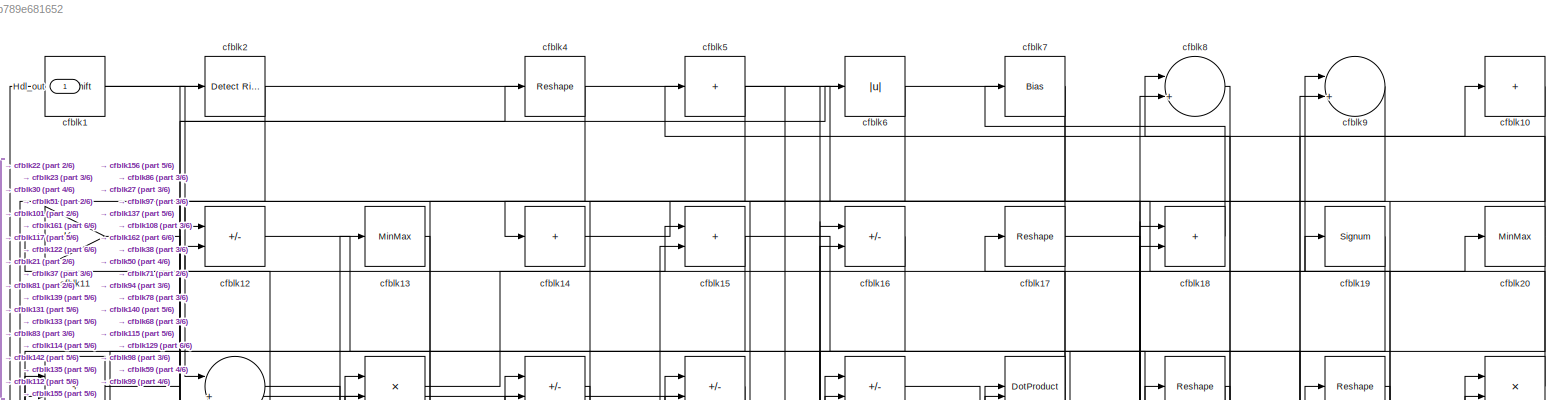
[diagram: root canvas - part 1/6, full width, top band]
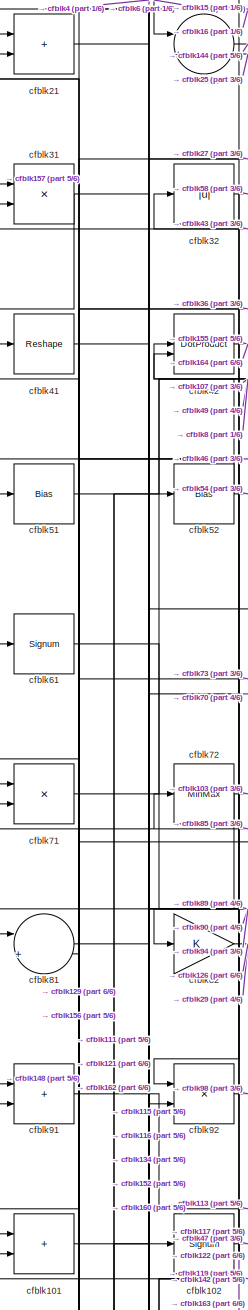
[diagram: root canvas - part 2/6, middle left region]
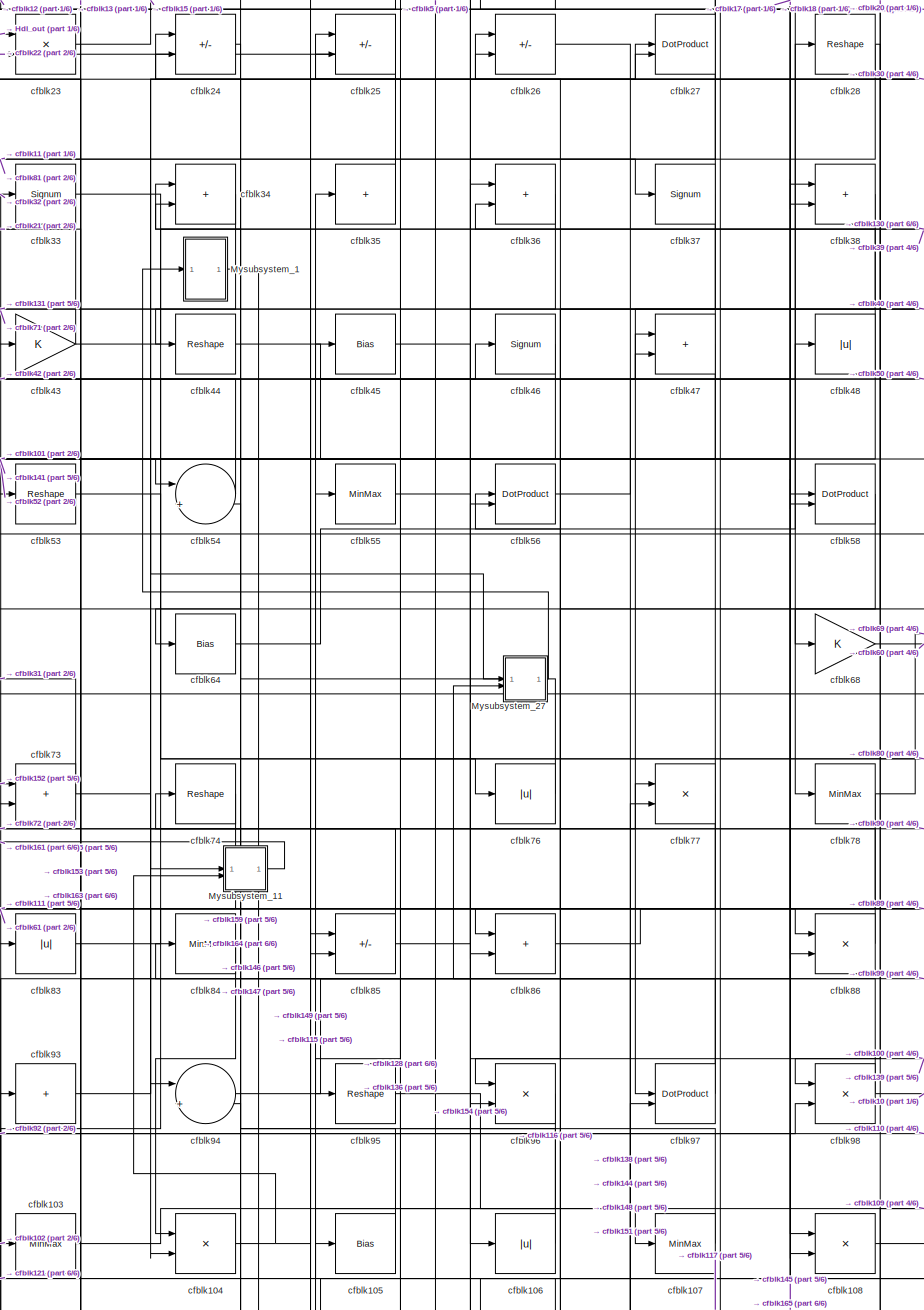
[diagram: root canvas - part 3/6, central region]
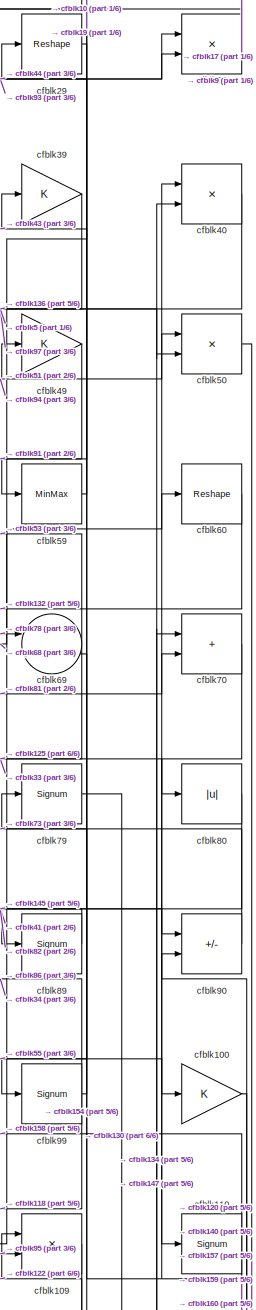
[diagram: root canvas - part 4/6, middle right region]
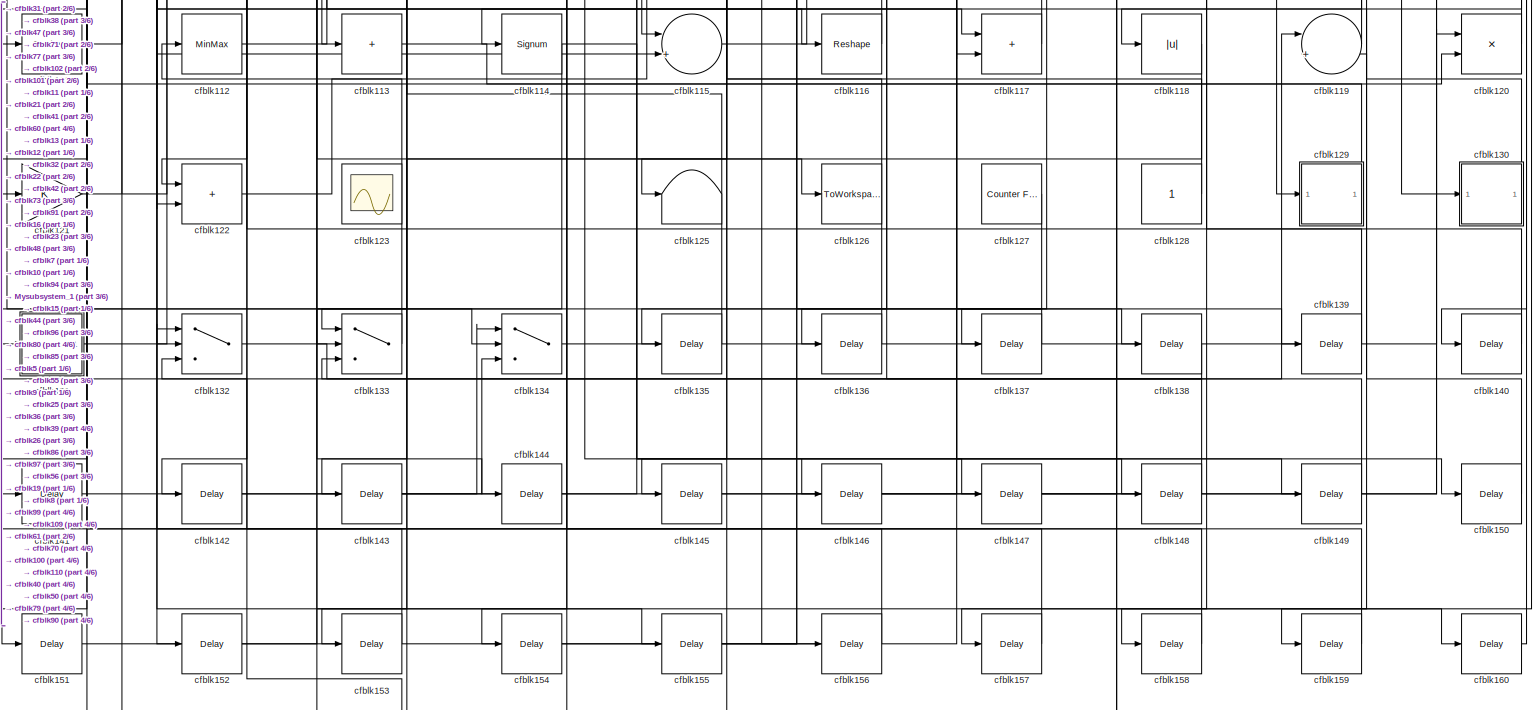
[diagram: root canvas - part 5/6, full width, bottom band]
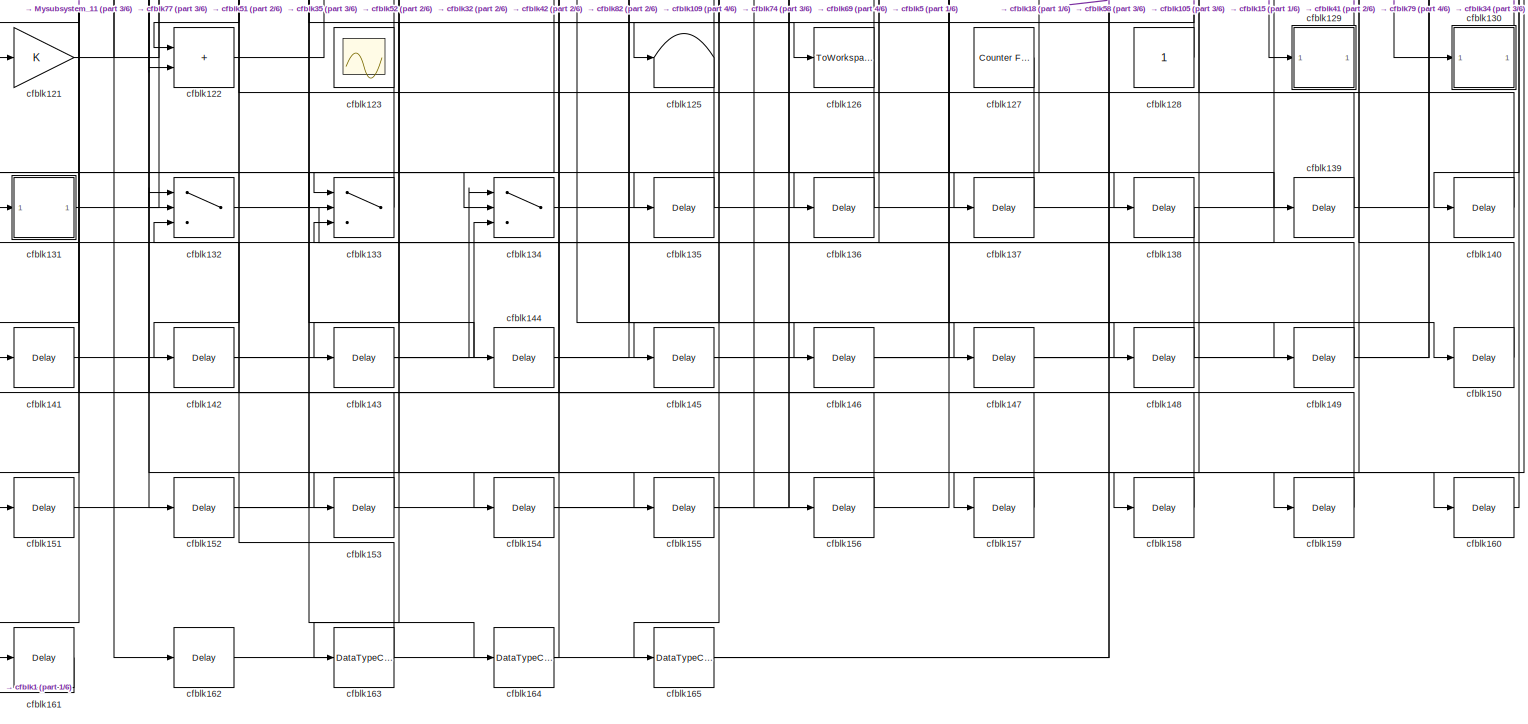
[diagram: root canvas - part 6/6, full width, bottom band]
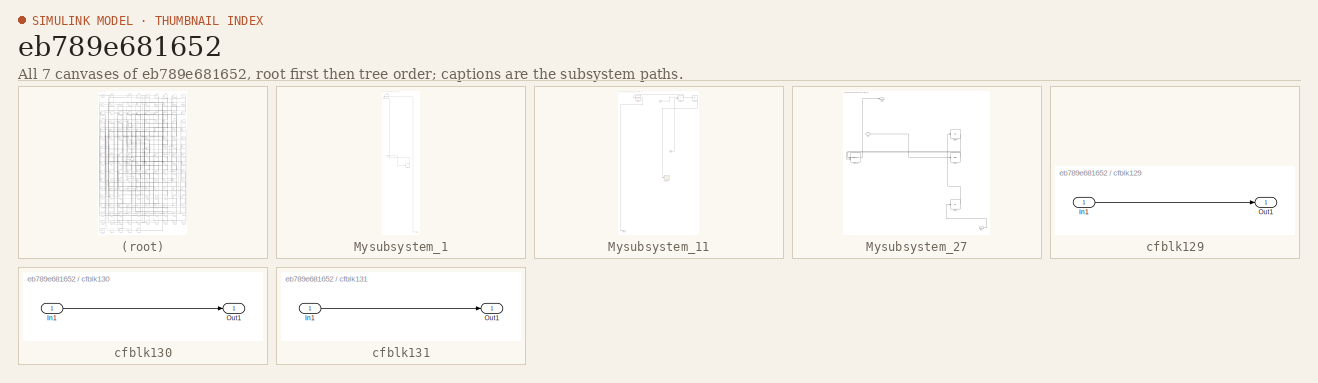
[diagram: thumbnail index - all 7 canvases of the model, root first then tree order]
MODEL slx_eb789e681652
KIND model
CONFIG AbsTol = auto
CONFIG EnableMultiTasking = off
CONFIG FixedStep = auto
CONFIG MaxStep = auto
CONFIG MinStep = auto
CONFIG RelTol = 1e-3
CONFIG SampleTimeConstraint = Unconstrained
CONFIG SolverName = VariableStepAuto
CONFIG StartTime = 0.0
CONFIG StopTime = 10.0
BLOCK [Outport] Hdl_out
  OutDataTypeStr = uint8
BLOCK [SubSystem] Mysubsystem_1
  RTWFcnName = Mysubsystem_1
  RTWFcnNameOpts = User specified
  RTWFileNameOpts = Use function name
  RTWSystemCode = Reusable function
  TreatAsAtomicUnit = on
BLOCK [Inport] Mysubsystem_1/In1
BLOCK [Outport] Mysubsystem_1/Y
BLOCK [Reference] Mysubsystem_1/cfblk3  REF=simulink/Logic and Bit
Operations/Detect
Decrease
  LibrarySourceBlock = hdlsllib/Logic and Bit\nOperations/Detect\nDecrease
  SourceBlock = simulink/Logic and Bit\nOperations/Detect\nDecrease
  SourceType = Detect Decrease
BLOCK [Sum] Mysubsystem_1/cfblk75
  IconShape = rectangular
  Inputs = +
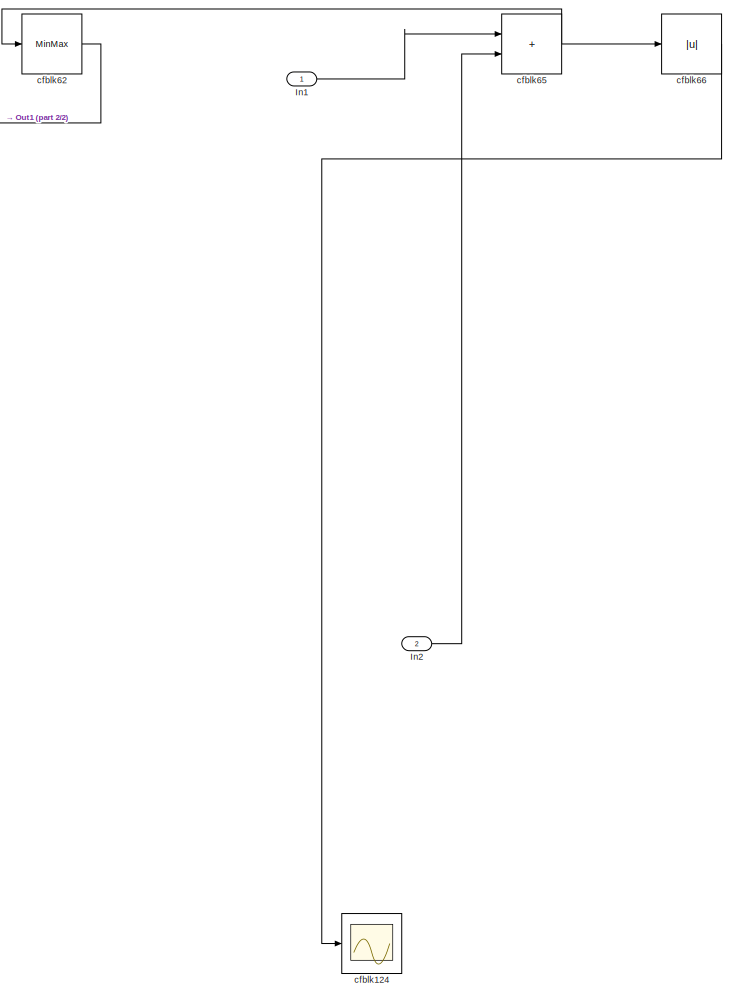
[diagram: Mysubsystem_11 - part 1/2, full width, top band]
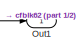
[diagram: Mysubsystem_11 - part 2/2, bottom left region]
BLOCK [SubSystem] Mysubsystem_11
  RTWFcnName = Mysubsystem_11
  RTWFcnNameOpts = User specified
  RTWFileNameOpts = Use function name
  RTWSystemCode = Reusable function
  TreatAsAtomicUnit = on
BLOCK [Inport] Mysubsystem_11/In1
BLOCK [Inport] Mysubsystem_11/In2
  Port = 2
BLOCK [Outport] Mysubsystem_11/Out1
BLOCK [Scope] Mysubsystem_11/cfblk124
  Floating = off
  NumInputPorts = 1
  ScopeSpecificationString = Simulink.scopes.TimeScopeBlockCfg('CurrentConfiguration', extmgr.ConfigurationSet(extmgr.Configuration('Core','General UI',true),extmgr.Configuration('Core','Source UI',true),extmgr.Configuration('Sources','WiredSimulink',true,'DataLoggingVariableName','ScopeData2','DataLoggingSaveFormat','Array','DataLoggingLimitDataPoints',true,'DataLoggingDecimation','1'),extmgr.Configuration('Visuals','Time Do...<+868ch>
BLOCK [MinMax] Mysubsystem_11/cfblk62
BLOCK [Sum] Mysubsystem_11/cfblk65
  IconShape = rectangular
BLOCK [Abs] Mysubsystem_11/cfblk66
  SaturateOnIntegerOverflow = off
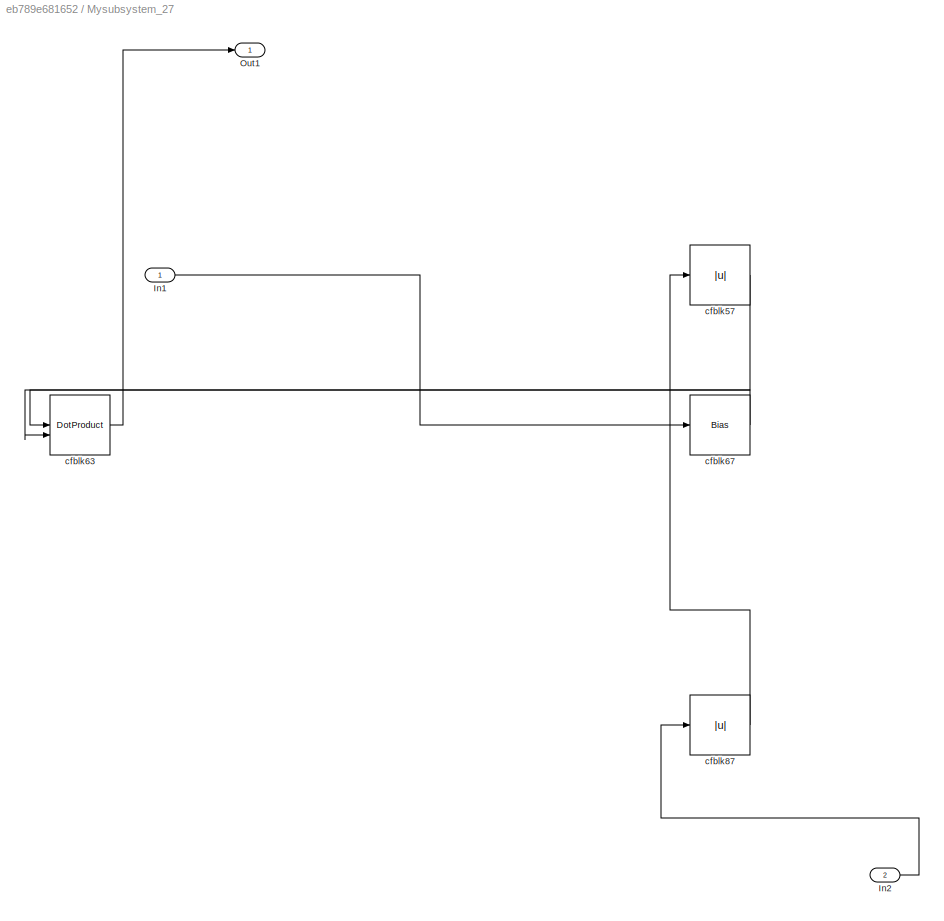
BLOCK [SubSystem] Mysubsystem_27
  RTWFcnName = Mysubsystem_27
  RTWFcnNameOpts = User specified
  RTWFileNameOpts = Use function name
  RTWSystemCode = Reusable function
  TreatAsAtomicUnit = on
BLOCK [Inport] Mysubsystem_27/In1
BLOCK [Inport] Mysubsystem_27/In2
  Port = 2
BLOCK [Outport] Mysubsystem_27/Out1
BLOCK [Abs] Mysubsystem_27/cfblk57
  SaturateOnIntegerOverflow = off
BLOCK [DotProduct] Mysubsystem_27/cfblk63
  OutDataTypeStr = Inherit: Inherit via internal rule
BLOCK [Bias] Mysubsystem_27/cfblk67
  Bias = 0.0
  SaturateOnIntegerOverflow = off
BLOCK [Abs] Mysubsystem_27/cfblk87
  SaturateOnIntegerOverflow = off
BLOCK [Reference] cfblk1  REF=hdlsllib/Logic and Bit
Operations/Bit Shift
  SourceBlock = hdlsllib/Logic and Bit\nOperations/Bit Shift
  SourceType = Bit Shift
BLOCK [Sum] cfblk10
  IconShape = rectangular
  Inputs = +
  OutDataTypeStr = uint8
BLOCK [Gain] cfblk100
  OutDataTypeStr = uint8
BLOCK [Sum] cfblk101
  IconShape = rectangular
  OutDataTypeStr = uint8
BLOCK [Signum] cfblk102
BLOCK [MinMax] cfblk103
  OutDataTypeStr = uint8
BLOCK [Product] cfblk104
  Inputs = */
  OutDataTypeStr = uint8
  RndMeth = Zero
  SaturateOnIntegerOverflow = on
BLOCK [Bias] cfblk105
  Bias = 0.0
  SaturateOnIntegerOverflow = off
BLOCK [Abs] cfblk106
  OutDataTypeStr = uint8
  SaturateOnIntegerOverflow = off
BLOCK [MinMax] cfblk107
  OutDataTypeStr = uint8
BLOCK [Product] cfblk108
  Inputs = */
  OutDataTypeStr = uint8
  RndMeth = Zero
  SaturateOnIntegerOverflow = on
BLOCK [Product] cfblk109
  Inputs = */
  OutDataTypeStr = uint8
  RndMeth = Zero
  SaturateOnIntegerOverflow = on
BLOCK [Gain] cfblk11
  OutDataTypeStr = uint8
BLOCK [Signum] cfblk110
BLOCK [Reshape] cfblk111
BLOCK [MinMax] cfblk112
  OutDataTypeStr = uint8
BLOCK [Sum] cfblk113
  IconShape = rectangular
  Inputs = +
  OutDataTypeStr = uint8
BLOCK [Signum] cfblk114
BLOCK [Sum] cfblk115
  Inputs = |++
  OutDataTypeStr = uint8
BLOCK [Reshape] cfblk116
BLOCK [Sum] cfblk117
  IconShape = rectangular
  OutDataTypeStr = uint8
BLOCK [Abs] cfblk118
  OutDataTypeStr = uint8
  SaturateOnIntegerOverflow = off
BLOCK [Sum] cfblk119
  Inputs = |++
  OutDataTypeStr = uint8
BLOCK [Sum] cfblk12
  IconShape = rectangular
  Inputs = +-
  OutDataTypeStr = uint8
BLOCK [Product] cfblk120
  Inputs = */
  OutDataTypeStr = uint8
  RndMeth = Zero
  SaturateOnIntegerOverflow = on
BLOCK [Gain] cfblk121
  OutDataTypeStr = uint8
BLOCK [Sum] cfblk122
  IconShape = rectangular
  OutDataTypeStr = uint8
BLOCK [Scope] cfblk123
  Floating = on
  NumInputPorts = 1
  ScopeSpecificationString = Simulink.scopes.TimeScopeBlockCfg('CurrentConfiguration', extmgr.ConfigurationSet(extmgr.Configuration('Core','General UI',true,'FigureColor',[0.156862745098039 0.156862745098039 0.156862745098039]),extmgr.Configuration('Core','Source UI',true),extmgr.Configuration('Sources','WiredSimulink',true,'DataLoggingVariableName','ScopeData1','DataLoggingSaveFormat','StructureWithTime','DataLoggingLimitDat...<+2713ch>
BLOCK [Terminator] cfblk125
BLOCK [ToWorkspace] cfblk126
  MaxDataPoints = inf
  SampleTime = -1
  SaveFormat = Timeseries
  VariableName = simout
BLOCK [Reference] cfblk127  REF=hdlsllib/Sources/Counter
Free-Running
  SourceBlock = hdlsllib/Sources/Counter\nFree-Running
  SourceType = Counter Free-Running
BLOCK [Constant] cfblk128
  OutDataTypeStr = uint8
  SampleTime = -1
BLOCK [SubSystem] cfblk129
  LibrarySourceBlock = hdlsllib/Ports &\nSubsystems/Subsystem
BLOCK [Inport] cfblk129/In1
BLOCK [Outport] cfblk129/Out1
BLOCK [MinMax] cfblk13
  OutDataTypeStr = uint8
BLOCK [SubSystem] cfblk130
  LibrarySourceBlock = hdlsllib/Ports &\nSubsystems/Subsystem
BLOCK [Inport] cfblk130/In1
BLOCK [Outport] cfblk130/Out1
BLOCK [SubSystem] cfblk131
  LibrarySourceBlock = hdlsllib/Ports &\nSubsystems/Subsystem
BLOCK [Inport] cfblk131/In1
BLOCK [Outport] cfblk131/Out1
BLOCK [Switch] cfblk132
  InputSameDT = off
  OutDataTypeStr = uint8
  SaturateOnIntegerOverflow = off
BLOCK [Switch] cfblk133
  InputSameDT = off
  OutDataTypeStr = uint8
  SaturateOnIntegerOverflow = off
BLOCK [Switch] cfblk134
  InputSameDT = off
  OutDataTypeStr = uint8
  SaturateOnIntegerOverflow = off
BLOCK [Delay] cfblk135
  InputPortMap = u0
  SampleTime = 1
BLOCK [Delay] cfblk136
  InputPortMap = u0
  SampleTime = 1
BLOCK [Delay] cfblk137
  InputPortMap = u0
  SampleTime = 1
BLOCK [Delay] cfblk138
  InputPortMap = u0
  SampleTime = 1
BLOCK [Delay] cfblk139
  InputPortMap = u0
  SampleTime = 1
BLOCK [Sum] cfblk14
  IconShape = rectangular
  Inputs = +
  OutDataTypeStr = uint8
BLOCK [Delay] cfblk140
  InputPortMap = u0
  SampleTime = 1
BLOCK [Delay] cfblk141
  InputPortMap = u0
  SampleTime = 1
BLOCK [Delay] cfblk142
  InputPortMap = u0
  SampleTime = 1
BLOCK [Delay] cfblk143
  InputPortMap = u0
  SampleTime = 1
BLOCK [Delay] cfblk144
  InputPortMap = u0
  SampleTime = 1
BLOCK [Delay] cfblk145
  InputPortMap = u0
  SampleTime = 1
BLOCK [Delay] cfblk146
  InputPortMap = u0
  SampleTime = 1
BLOCK [Delay] cfblk147
  InputPortMap = u0
  SampleTime = 1
BLOCK [Delay] cfblk148
  InputPortMap = u0
  SampleTime = 1
BLOCK [Delay] cfblk149
  InputPortMap = u0
  SampleTime = 1
BLOCK [Sum] cfblk15
  IconShape = rectangular
  OutDataTypeStr = uint8
BLOCK [Delay] cfblk150
  InputPortMap = u0
  SampleTime = 1
BLOCK [Delay] cfblk151
  InputPortMap = u0
  SampleTime = 1
BLOCK [Delay] cfblk152
  InputPortMap = u0
  SampleTime = 1
BLOCK [Delay] cfblk153
  InputPortMap = u0
  SampleTime = 1
BLOCK [Delay] cfblk154
  InputPortMap = u0
  SampleTime = 1
BLOCK [Delay] cfblk155
  InputPortMap = u0
  SampleTime = 1
BLOCK [Delay] cfblk156
  InputPortMap = u0
  SampleTime = 1
BLOCK [Delay] cfblk157
  InputPortMap = u0
  SampleTime = 1
BLOCK [Delay] cfblk158
  InputPortMap = u0
  SampleTime = 1
BLOCK [Delay] cfblk159
  InputPortMap = u0
  SampleTime = 1
BLOCK [Sum] cfblk16
  IconShape = rectangular
  Inputs = +-
  OutDataTypeStr = uint8
BLOCK [Delay] cfblk160
  InputPortMap = u0
  SampleTime = 1
BLOCK [Delay] cfblk161
  InputPortMap = u0
  SampleTime = 1
BLOCK [Delay] cfblk162
  InputPortMap = u0
  SampleTime = 1
BLOCK [DataTypeConversion] cfblk163
  OutDataTypeStr = uint8
  RndMeth = Floor
  SaturateOnIntegerOverflow = off
BLOCK [DataTypeConversion] cfblk164
  OutDataTypeStr = uint8
  RndMeth = Floor
  SaturateOnIntegerOverflow = off
BLOCK [DataTypeConversion] cfblk165
  OutDataTypeStr = uint8
  RndMeth = Floor
  SaturateOnIntegerOverflow = off
BLOCK [Reshape] cfblk17
BLOCK [Sum] cfblk18
  IconShape = rectangular
  OutDataTypeStr = uint8
BLOCK [Signum] cfblk19
BLOCK [Reference] cfblk2  REF=hdlsllib/Logic and Bit
Operations/Detect Rise
Positive
  SourceBlock = hdlsllib/Logic and Bit\nOperations/Detect Rise\nPositive
  SourceType = Detect Rise Positive
BLOCK [MinMax] cfblk20
  OutDataTypeStr = uint8
BLOCK [Sum] cfblk21
  IconShape = rectangular
  OutDataTypeStr = uint8
BLOCK [Sum] cfblk22
  Inputs = |++
  OutDataTypeStr = uint8
BLOCK [Product] cfblk23
  Inputs = */
  OutDataTypeStr = uint8
  RndMeth = Zero
  SaturateOnIntegerOverflow = on
BLOCK [Sum] cfblk24
  IconShape = rectangular
  Inputs = +-
  OutDataTypeStr = uint8
BLOCK [Sum] cfblk25
  IconShape = rectangular
  Inputs = +-
  OutDataTypeStr = uint8
BLOCK [Sum] cfblk26
  IconShape = rectangular
  Inputs = +-
  OutDataTypeStr = uint8
BLOCK [DotProduct] cfblk27
  OutDataTypeStr = uint8
BLOCK [Reshape] cfblk28
BLOCK [Reshape] cfblk29
BLOCK [Product] cfblk30
  Inputs = */
  OutDataTypeStr = uint8
  RndMeth = Zero
  SaturateOnIntegerOverflow = on
BLOCK [Product] cfblk31
  Inputs = */
  OutDataTypeStr = uint8
  RndMeth = Zero
  SaturateOnIntegerOverflow = on
BLOCK [Abs] cfblk32
  OutDataTypeStr = uint8
  SaturateOnIntegerOverflow = off
BLOCK [Signum] cfblk33
BLOCK [Sum] cfblk34
  IconShape = rectangular
  OutDataTypeStr = uint8
BLOCK [Sum] cfblk35
  IconShape = rectangular
  Inputs = +
  OutDataTypeStr = uint8
BLOCK [Sum] cfblk36
  IconShape = rectangular
  OutDataTypeStr = uint8
BLOCK [Signum] cfblk37
BLOCK [Sum] cfblk38
  IconShape = rectangular
  OutDataTypeStr = uint8
BLOCK [Gain] cfblk39
  OutDataTypeStr = uint8
BLOCK [Reshape] cfblk4
BLOCK [Product] cfblk40
  Inputs = */
  OutDataTypeStr = uint8
  RndMeth = Zero
  SaturateOnIntegerOverflow = on
BLOCK [Reshape] cfblk41
BLOCK [DotProduct] cfblk42
  OutDataTypeStr = uint8
BLOCK [Gain] cfblk43
  OutDataTypeStr = uint8
BLOCK [Reshape] cfblk44
BLOCK [Bias] cfblk45
  Bias = 0.0
  SaturateOnIntegerOverflow = off
BLOCK [Signum] cfblk46
BLOCK [Sum] cfblk47
  IconShape = rectangular
  OutDataTypeStr = uint8
BLOCK [Abs] cfblk48
  OutDataTypeStr = uint8
  SaturateOnIntegerOverflow = off
BLOCK [Gain] cfblk49
  OutDataTypeStr = uint8
BLOCK [Sum] cfblk5
  IconShape = rectangular
  Inputs = +
  OutDataTypeStr = uint8
BLOCK [Product] cfblk50
  Inputs = */
  OutDataTypeStr = uint8
  RndMeth = Zero
  SaturateOnIntegerOverflow = on
BLOCK [Bias] cfblk51
  Bias = 0.0
  SaturateOnIntegerOverflow = off
BLOCK [Bias] cfblk52
  Bias = 0.0
  SaturateOnIntegerOverflow = off
BLOCK [Reshape] cfblk53
BLOCK [Sum] cfblk54
  Inputs = |++
  OutDataTypeStr = uint8
BLOCK [MinMax] cfblk55
  OutDataTypeStr = uint8
BLOCK [DotProduct] cfblk56
  OutDataTypeStr = uint8
BLOCK [DotProduct] cfblk58
  OutDataTypeStr = uint8
BLOCK [MinMax] cfblk59
  OutDataTypeStr = uint8
BLOCK [Abs] cfblk6
  OutDataTypeStr = uint8
  SaturateOnIntegerOverflow = off
BLOCK [Reshape] cfblk60
BLOCK [Signum] cfblk61
BLOCK [Bias] cfblk64
  Bias = 0.0
  SaturateOnIntegerOverflow = off
BLOCK [Gain] cfblk68
  OutDataTypeStr = uint8
BLOCK [Sum] cfblk69
  Inputs = |++
  OutDataTypeStr = uint8
BLOCK [Bias] cfblk7
  Bias = 0.0
  SaturateOnIntegerOverflow = off
BLOCK [Sum] cfblk70
  IconShape = rectangular
  OutDataTypeStr = uint8
BLOCK [Product] cfblk71
  Inputs = */
  OutDataTypeStr = uint8
  RndMeth = Zero
  SaturateOnIntegerOverflow = on
BLOCK [MinMax] cfblk72
  OutDataTypeStr = uint8
BLOCK [Sum] cfblk73
  IconShape = rectangular
  OutDataTypeStr = uint8
BLOCK [Reshape] cfblk74
BLOCK [Abs] cfblk76
  OutDataTypeStr = uint8
  SaturateOnIntegerOverflow = off
BLOCK [Product] cfblk77
  Inputs = */
  OutDataTypeStr = uint8
  RndMeth = Zero
  SaturateOnIntegerOverflow = on
BLOCK [MinMax] cfblk78
  OutDataTypeStr = uint8
BLOCK [Signum] cfblk79
BLOCK [Sum] cfblk8
  Inputs = |++
  OutDataTypeStr = uint8
BLOCK [Abs] cfblk80
  OutDataTypeStr = uint8
  SaturateOnIntegerOverflow = off
BLOCK [Sum] cfblk81
  Inputs = |++
  OutDataTypeStr = uint8
BLOCK [Gain] cfblk82
  OutDataTypeStr = uint8
BLOCK [Abs] cfblk83
  OutDataTypeStr = uint8
  SaturateOnIntegerOverflow = off
BLOCK [MinMax] cfblk84
  OutDataTypeStr = uint8
BLOCK [Sum] cfblk85
  IconShape = rectangular
  Inputs = +-
  OutDataTypeStr = uint8
BLOCK [Sum] cfblk86
  IconShape = rectangular
  OutDataTypeStr = uint8
BLOCK [Product] cfblk88
  Inputs = */
  OutDataTypeStr = uint8
  RndMeth = Zero
  SaturateOnIntegerOverflow = on
BLOCK [Signum] cfblk89
BLOCK [Sum] cfblk9
  Inputs = |++
  OutDataTypeStr = uint8
BLOCK [Sum] cfblk90
  IconShape = rectangular
  Inputs = +-
  OutDataTypeStr = uint8
BLOCK [Sum] cfblk91
  IconShape = rectangular
  OutDataTypeStr = uint8
BLOCK [Product] cfblk92
  Inputs = */
  OutDataTypeStr = uint8
  RndMeth = Zero
  SaturateOnIntegerOverflow = on
BLOCK [Sum] cfblk93
  IconShape = rectangular
  Inputs = +
  OutDataTypeStr = uint8
BLOCK [Sum] cfblk94
  Inputs = |++
  OutDataTypeStr = uint8
BLOCK [Reshape] cfblk95
BLOCK [Product] cfblk96
  Inputs = */
  OutDataTypeStr = uint8
  RndMeth = Zero
  SaturateOnIntegerOverflow = on
BLOCK [DotProduct] cfblk97
  OutDataTypeStr = uint8
BLOCK [Product] cfblk98
  Inputs = */
  OutDataTypeStr = uint8
  RndMeth = Zero
  SaturateOnIntegerOverflow = on
BLOCK [Signum] cfblk99
LINE Mysubsystem_1/In1:1 -> Mysubsystem_1/cfblk75:1
LINE Mysubsystem_1/cfblk3:1 -> Mysubsystem_1/Y:1
LINE Mysubsystem_1/cfblk75:1 -> Mysubsystem_1/cfblk3:1
LINE Mysubsystem_11/In1:1 -> Mysubsystem_11/cfblk65:1
LINE Mysubsystem_11/In2:1 -> Mysubsystem_11/cfblk65:2
LINE Mysubsystem_11/cfblk62:1 -> Mysubsystem_11/Out1:1
NET Mysubsystem_11/cfblk65:1 -> Mysubsystem_11/cfblk62:1, Mysubsystem_11/cfblk66:1
LINE Mysubsystem_11/cfblk66:1 -> Mysubsystem_11/cfblk124:1
LINE Mysubsystem_11:1 -> cfblk161:1
NET Mysubsystem_1:1 -> cfblk146:1, cfblk147:1
LINE Mysubsystem_27/In1:1 -> Mysubsystem_27/cfblk67:1
LINE Mysubsystem_27/In2:1 -> Mysubsystem_27/cfblk87:1
LINE Mysubsystem_27/cfblk57:1 -> Mysubsystem_27/cfblk63:2
LINE Mysubsystem_27/cfblk63:1 -> Mysubsystem_27/Out1:1
LINE Mysubsystem_27/cfblk67:1 -> Mysubsystem_27/cfblk63:1
LINE Mysubsystem_27/cfblk87:1 -> Mysubsystem_27/cfblk57:1
LINE Mysubsystem_27:1 -> Mysubsystem_1:1
LINE cfblk100:1 -> cfblk140:1
LINE cfblk101:1 -> cfblk152:1
NET cfblk102:1 -> cfblk142:1, cfblk47:1
LINE cfblk103:1 -> cfblk107:1
NET cfblk104:1 -> Mysubsystem_11:2, cfblk27:2, cfblk85:2
NET cfblk105:1 -> cfblk24:2, cfblk84:1
LINE cfblk106:1 -> cfblk25:1
LINE cfblk107:1 -> cfblk42:1
LINE cfblk108:1 -> cfblk26:1
LINE cfblk109:1 -> cfblk154:1
NET cfblk10:1 -> cfblk114:1, cfblk99:1
NET cfblk110:1 -> cfblk158:1, cfblk159:1, cfblk93:1
LINE cfblk111:1 -> cfblk102:1
LINE cfblk112:1 -> cfblk16:1
LINE cfblk113:1 -> cfblk120:2
NET cfblk114:1 -> cfblk150:1, cfblk151:1
LINE cfblk115:1 -> cfblk9:2
LINE cfblk116:1 -> cfblk25:2
LINE cfblk117:1 -> cfblk56:1
LINE cfblk118:1 -> cfblk143:1
LINE cfblk119:1 -> cfblk61:1
NET cfblk11:1 -> cfblk117:2, cfblk37:1
NET cfblk120:1 -> cfblk40:1, cfblk79:1
NET cfblk121:1 -> cfblk35:1, cfblk52:1
LINE cfblk122:1 -> cfblk109:1
LINE cfblk127:1 -> cfblk165:1
LINE cfblk128:1 -> cfblk105:1
LINE cfblk129/In1:1 -> cfblk129/Out1:1
LINE cfblk129:1 -> cfblk41:1
LINE cfblk12:1 -> cfblk78:1
LINE cfblk130/In1:1 -> cfblk130/Out1:1
LINE cfblk130:1 -> cfblk34:1
LINE cfblk131/In1:1 -> cfblk131/Out1:1
LINE cfblk131:1 -> cfblk13:1
LINE cfblk132:1 -> cfblk119:1
LINE cfblk133:1 -> cfblk112:1
LINE cfblk134:1 -> cfblk70:1
LINE cfblk135:1 -> cfblk23:2
LINE cfblk136:1 -> cfblk85:1
LINE cfblk137:1 -> cfblk133:2
LINE cfblk138:1 -> cfblk133:3
LINE cfblk139:1 -> cfblk12:2
LINE cfblk13:1 -> cfblk83:1
LINE cfblk140:1 -> cfblk8:1
LINE cfblk141:1 -> cfblk134:1
LINE cfblk142:1 -> cfblk15:2
LINE cfblk143:1 -> cfblk134:3
LINE cfblk144:1 -> cfblk97:2
LINE cfblk145:1 -> cfblk38:1
LINE cfblk146:1 -> cfblk120:1
LINE cfblk147:1 -> cfblk40:2
LINE cfblk148:1 -> cfblk91:1
LINE cfblk149:1 -> cfblk36:2
LINE cfblk14:1 -> cfblk20:1
LINE cfblk150:1 -> cfblk119:2
LINE cfblk151:1 -> cfblk77:2
LINE cfblk152:1 -> cfblk73:1
LINE cfblk153:1 -> cfblk132:1
LINE cfblk154:1 -> cfblk56:2
LINE cfblk155:1 -> cfblk16:2
LINE cfblk156:1 -> cfblk71:2
LINE cfblk157:1 -> cfblk31:1
LINE cfblk158:1 -> cfblk132:3
LINE cfblk159:1 -> cfblk94:2
NET cfblk15:1 -> cfblk129:1, cfblk81:2
LINE cfblk160:1 -> cfblk90:2
LINE cfblk161:1 -> cfblk1:1
LINE cfblk162:1 -> cfblk18:2
LINE cfblk163:1 -> cfblk32:1
LINE cfblk164:1 -> cfblk74:1
LINE cfblk165:1 -> cfblk58:1
LINE cfblk16:1 -> cfblk51:1
LINE cfblk17:1 -> cfblk108:1
LINE cfblk18:1 -> cfblk7:1
LINE cfblk19:1 -> cfblk137:1
LINE cfblk1:1 -> cfblk12:1
NET cfblk20:1 -> cfblk5:1, cfblk86:2
NET cfblk21:1 -> cfblk116:1, cfblk4:1
LINE cfblk22:1 -> cfblk144:1
LINE cfblk23:1 -> cfblk15:1
LINE cfblk24:1 -> cfblk64:1
LINE cfblk25:1 -> cfblk22:2
LINE cfblk26:1 -> cfblk148:1
NET cfblk27:1 -> cfblk11:1, cfblk81:1
NET cfblk28:1 -> cfblk88:2, cfblk96:2, cfblk98:1
LINE cfblk29:1 -> cfblk59:1
LINE cfblk2:1 -> cfblk22:1
NET cfblk30:1 -> cfblk17:1, cfblk9:1
NET cfblk31:1 -> cfblk134:2, cfblk160:1
NET cfblk32:1 -> cfblk117:1, cfblk122:1, cfblk58:2
LINE cfblk33:1 -> cfblk80:1
LINE cfblk34:1 -> cfblk44:1
LINE cfblk35:1 -> cfblk24:1
LINE cfblk36:1 -> cfblk71:1
LINE cfblk37:1 -> cfblk86:1
LINE cfblk38:1 -> cfblk131:1
LINE cfblk39:1 -> cfblk136:1
LINE cfblk40:1 -> cfblk97:1
NET cfblk41:1 -> cfblk115:2, cfblk90:1
NET cfblk42:1 -> cfblk155:1, cfblk164:1
NET cfblk43:1 -> cfblk21:2, cfblk39:1
NET cfblk44:1 -> cfblk108:2, cfblk149:1, cfblk30:2
LINE cfblk45:1 -> cfblk106:1
NET cfblk46:1 -> cfblk101:1, cfblk92:1
LINE cfblk47:1 -> cfblk141:1
NET cfblk48:1 -> cfblk153:1, cfblk26:2, cfblk95:1
LINE cfblk49:1 -> cfblk91:2
LINE cfblk4:1 -> cfblk14:1
LINE cfblk50:1 -> cfblk157:1
NET cfblk51:1 -> cfblk162:1, cfblk49:1
NET cfblk52:1 -> cfblk42:2, cfblk54:1
NET cfblk53:1 -> Mysubsystem_27:1, cfblk76:1
LINE cfblk54:1 -> cfblk33:1
NET cfblk55:1 -> cfblk100:1, cfblk139:1
LINE cfblk56:1 -> cfblk48:1
LINE cfblk58:1 -> cfblk96:1
LINE cfblk59:1 -> cfblk19:1
NET cfblk5:1 -> cfblk122:2, cfblk156:1, cfblk38:2, cfblk50:2
LINE cfblk60:1 -> cfblk132:2
LINE cfblk61:1 -> cfblk94:1
NET cfblk64:1 -> cfblk28:1, cfblk46:1
LINE cfblk68:1 -> cfblk60:1
NET cfblk69:1 -> cfblk125:1, cfblk53:1
LINE cfblk6:1 -> cfblk101:2
LINE cfblk70:1 -> cfblk110:1
LINE cfblk71:1 -> cfblk8:2
NET cfblk72:1 -> cfblk103:1, cfblk92:2
NET cfblk73:1 -> Mysubsystem_11:1, cfblk27:1, cfblk31:2
LINE cfblk74:1 -> cfblk163:1
NET cfblk76:1 -> cfblk45:1, cfblk54:2
NET cfblk77:1 -> cfblk111:1, cfblk121:1
NET cfblk78:1 -> cfblk104:2, cfblk69:1
LINE cfblk79:1 -> cfblk130:1
LINE cfblk7:1 -> cfblk133:1
LINE cfblk80:1 -> cfblk145:1
NET cfblk81:1 -> cfblk2:1, cfblk6:1, cfblk70:2
NET cfblk82:1 -> cfblk126:1, cfblk29:1
NET cfblk83:1 -> cfblk77:1, cfblk88:1
LINE cfblk84:1 -> cfblk104:1
NET cfblk85:1 -> cfblk21:1, cfblk36:1, cfblk72:1
NET cfblk86:1 -> cfblk138:1, cfblk89:1
LINE cfblk88:1 -> cfblk55:1
LINE cfblk89:1 -> cfblk82:1
LINE cfblk8:1 -> cfblk68:1
LINE cfblk90:1 -> cfblk73:2
LINE cfblk91:1 -> cfblk113:1
LINE cfblk92:1 -> cfblk98:2
NET cfblk93:1 -> cfblk30:1, cfblk43:1
NET cfblk94:1 -> cfblk18:1, cfblk47:2, cfblk50:1
LINE cfblk95:1 -> cfblk109:2
LINE cfblk96:1 -> cfblk115:1
NET cfblk97:1 -> Hdl_out:1, cfblk23:1
NET cfblk98:1 -> Mysubsystem_27:2, cfblk10:1
NET cfblk99:1 -> cfblk118:1, cfblk34:2, cfblk69:2
LINE cfblk9:1 -> cfblk135:1
note: NET lines group one-source signal fan-out (src -> all destinations, sorted); 1:1 wires keep LINE
